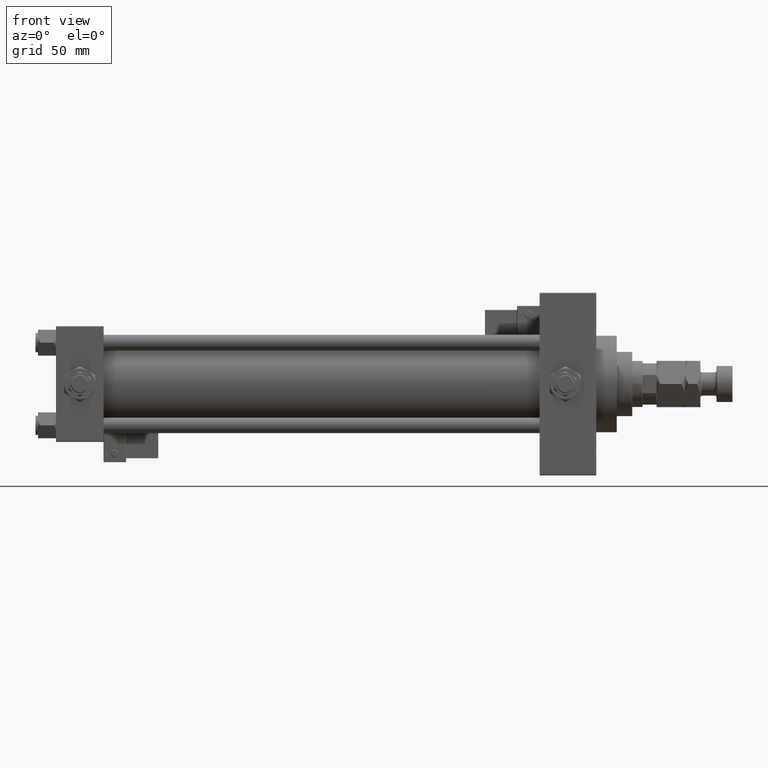
[diagram: clean part render]
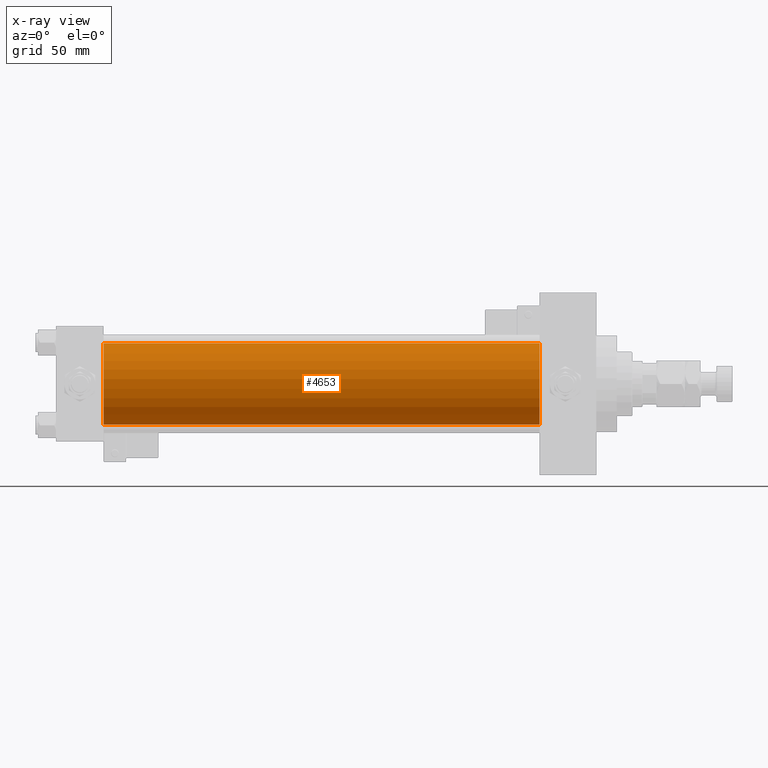
[diagram: x-ray — body ghosted, one internal face saturated and labeled with its STEP entity id]
A machine part, front view, then the same camera in x-ray: the body is ghosted and one INTERNAL B-rep face — a face not visible from any outside direction — is saturated and labeled: STEP entity #4653.
In plain terms, the highlighted cylindrical surface (partial cylindrical patch) has radius 31.5 mm, axis along (-1, -0, -0).
Its self-contained STEP definition (entity closure, byte-faithful):
#144 = AXIS2_PLACEMENT_3D ( 'NONE', #1070, #33919, #48790 ) ;
#370 = DIRECTION ( 'NONE',  ( -1.000000000000000000, -0.000000000000000000, -0.000000000000000000 ) ) ;
#1070 = CARTESIAN_POINT ( 'NONE',  ( 37.00000000000000000, -2.602085213965210642E-15, 0.000000000000000000 ) ) ;
#2148 = VECTOR ( 'NONE', #370, 1000.000000000000000 ) ;
#4653 = ADVANCED_FACE ( 'NONE', ( #13268 ), #29724, .F. ) ;
#5512 = ORIENTED_EDGE ( 'NONE', *, *, #15672, .F. ) ;
#5915 = EDGE_CURVE ( 'NONE', #49639, #26765, #12484, .T. ) ;
#6693 = LINE ( 'NONE', #39791, #27852 ) ;
#9242 = DIRECTION ( 'NONE',  ( 0.000000000000000000, 0.000000000000000000, 1.000000000000000000 ) ) ;
#10022 = DIRECTION ( 'NONE',  ( -1.000000000000000000, -0.000000000000000000, -0.000000000000000000 ) ) ;
#12173 = ORIENTED_EDGE ( 'NONE', *, *, #5915, .T. ) ;
#12484 = LINE ( 'NONE', #24890, #2148 ) ;
#13268 = FACE_OUTER_BOUND ( 'NONE', #48142, .T. ) ;
#14634 = ORIENTED_EDGE ( 'NONE', *, *, #41408, .F. ) ;
#15672 = EDGE_CURVE ( 'NONE', #20159, #26765, #30243, .T. ) ;
#20077 = VERTEX_POINT ( 'NONE', #30466 ) ;
#20159 = VERTEX_POINT ( 'NONE', #35549 ) ;
#24455 = EDGE_CURVE ( 'NONE', #20077, #49639, #45865, .T. ) ;
#24890 = CARTESIAN_POINT ( 'NONE',  ( 376.0000000000000000, 1.255552203348951850E-15, -31.50000000000000000 ) ) ;
#26765 = VERTEX_POINT ( 'NONE', #51917 ) ;
#27852 = VECTOR ( 'NONE', #48114, 1000.000000000000000 ) ;
#27897 = DIRECTION ( 'NONE',  ( 1.000000000000000000, 0.000000000000000000, 0.000000000000000000 ) ) ;
#29724 = CYLINDRICAL_SURFACE ( 'NONE', #43473, 31.50000000000000000 ) ;
#30243 = CIRCLE ( 'NONE', #144, 31.50000000000000000 ) ;
#30466 = CARTESIAN_POINT ( 'NONE',  ( 376.0000000000000000, -2.602085213965210642E-15, 31.50000000000000000 ) ) ;
#31396 = DIRECTION ( 'NONE',  ( 0.000000000000000000, 0.000000000000000000, -1.000000000000000000 ) ) ;
#33919 = DIRECTION ( 'NONE',  ( 1.000000000000000000, 0.000000000000000000, 0.000000000000000000 ) ) ;
#34022 = ORIENTED_EDGE ( 'NONE', *, *, #24455, .T. ) ;
#35549 = CARTESIAN_POINT ( 'NONE',  ( 37.00000000000000000, -2.602085213965210642E-15, 31.50000000000000000 ) ) ;
#39791 = CARTESIAN_POINT ( 'NONE',  ( 376.0000000000000000, -2.602085213965210642E-15, 31.50000000000000000 ) ) ;
#41408 = EDGE_CURVE ( 'NONE', #20077, #20159, #6693, .T. ) ;
#43473 = AXIS2_PLACEMENT_3D ( 'NONE', #46094, #10022, #9242 ) ;
#45865 = CIRCLE ( 'NONE', #46696, 31.50000000000000000 ) ;
#46094 = CARTESIAN_POINT ( 'NONE',  ( 376.0000000000000000, -2.602085213965210642E-15, 0.000000000000000000 ) ) ;
#46696 = AXIS2_PLACEMENT_3D ( 'NONE', #47770, #27897, #31396 ) ;
#47770 = CARTESIAN_POINT ( 'NONE',  ( 376.0000000000000000, -2.602085213965210642E-15, 0.000000000000000000 ) ) ;
#48114 = DIRECTION ( 'NONE',  ( -1.000000000000000000, -0.000000000000000000, -0.000000000000000000 ) ) ;
#48142 = EDGE_LOOP ( 'NONE', ( #34022, #12173, #5512, #14634 ) ) ;
#48790 = DIRECTION ( 'NONE',  ( 0.000000000000000000, 0.000000000000000000, -1.000000000000000000 ) ) ;
#49639 = VERTEX_POINT ( 'NONE', #52350 ) ;
#51917 = CARTESIAN_POINT ( 'NONE',  ( 37.00000000000000000, 1.255552203348951850E-15, -31.50000000000000000 ) ) ;
#52350 = CARTESIAN_POINT ( 'NONE',  ( 376.0000000000000000, 1.255552203348951850E-15, -31.50000000000000000 ) ) ;